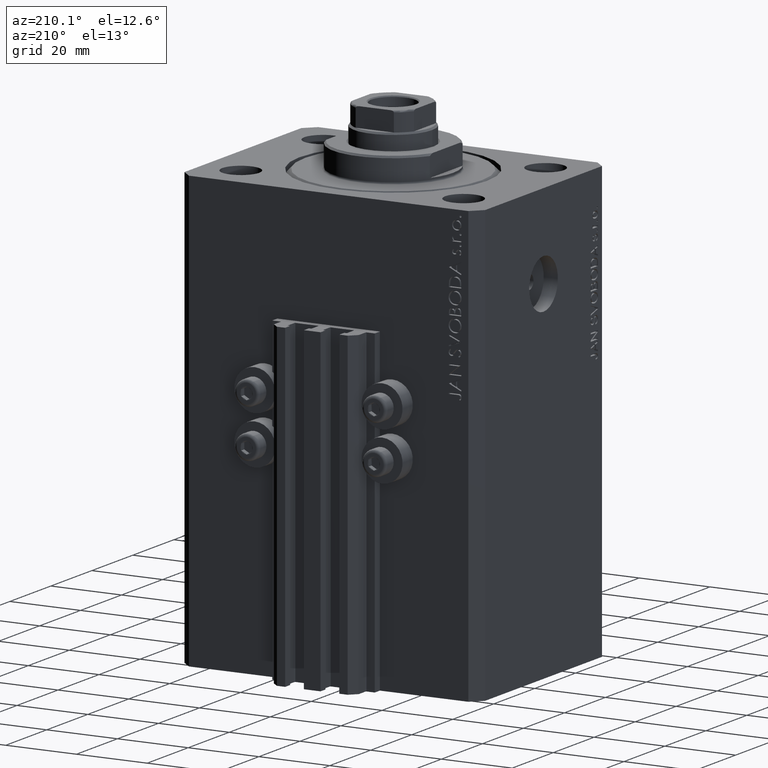
[diagram: clean part render]
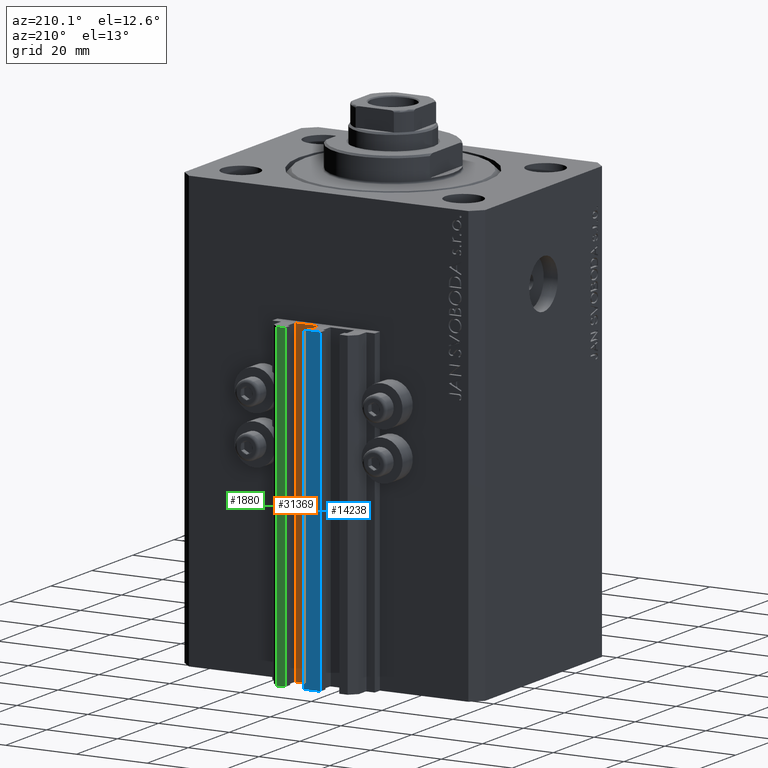
[diagram: same view with three faces highlighted in distinct colors, each labeled with its STEP entity id]
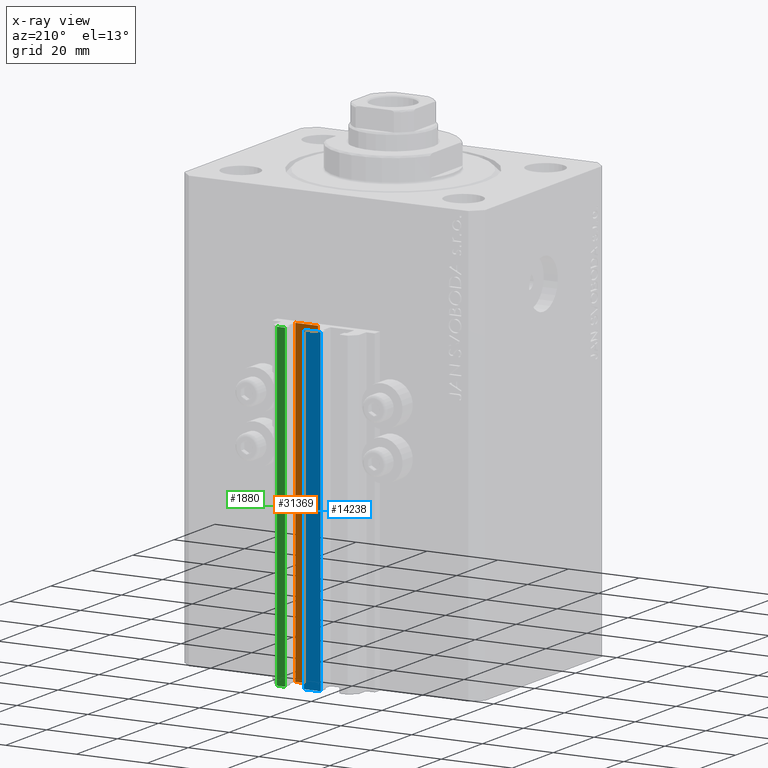
[diagram: x-ray of the same camera — body ghosted, the three highlighted faces saturated]
A machine part, auxiliary view with three faces highlighted in distinct colors.
The next image is the same camera in x-ray (body ghosted, the three faces saturated) — at least one of them is partly hidden behind the body in this view.
Their STEP definitions:

[orange] entity #31369 — the highlighted planar face has unit normal (0, 1, 0).
#597 = DIRECTION ( 'NONE',  ( 0.000000000000000000, 0.000000000000000000, 1.000000000000000000 ) ) ;
#833 = PLANE ( 'NONE',  #20936 ) ;
#950 = VECTOR ( 'NONE', #12486, 1000.000000000000000 ) ;
#1027 = CARTESIAN_POINT ( 'NONE',  ( 8.199999999999999289, 33.50000000000000000, -33.00000000000000000 ) ) ;
#1085 = EDGE_CURVE ( 'NONE', #8247, #42913, #40264, .T. ) ;
#2214 = LINE ( 'NONE', #41696, #950 ) ;
#2679 = CARTESIAN_POINT ( 'NONE',  ( 8.199999999999999289, 33.50000000000000000, -123.0000000000000000 ) ) ;
#3431 = VECTOR ( 'NONE', #5373, 1000.000000000000000 ) ;
#4209 = ORIENTED_EDGE ( 'NONE', *, *, #8981, .F. ) ;
#5373 = DIRECTION ( 'NONE',  ( 0.000000000000000000, 0.000000000000000000, 1.000000000000000000 ) ) ;
#8247 = VERTEX_POINT ( 'NONE', #2679 ) ;
#8672 = VERTEX_POINT ( 'NONE', #8765 ) ;
#8765 = CARTESIAN_POINT ( 'NONE',  ( 1.800000000000000933, 33.50000000000000000, -123.0000000000000000 ) ) ;
#8981 = EDGE_CURVE ( 'NONE', #42913, #45127, #16090, .T. ) ;
#11019 = ORIENTED_EDGE ( 'NONE', *, *, #1085, .F. ) ;
#11229 = VECTOR ( 'NONE', #12504, 1000.000000000000000 ) ;
#12058 = DIRECTION ( 'NONE',  ( 0.000000000000000000, 1.000000000000000000, -0.000000000000000000 ) ) ;
#12486 = DIRECTION ( 'NONE',  ( -1.000000000000000000, 0.000000000000000000, 0.000000000000000000 ) ) ;
#12504 = DIRECTION ( 'NONE',  ( -1.000000000000000000, 0.000000000000000000, 0.000000000000000000 ) ) ;
#13235 = CARTESIAN_POINT ( 'NONE',  ( 1.800000000000000933, 33.50000000000000000, -123.0000000000000000 ) ) ;
#13397 = ORIENTED_EDGE ( 'NONE', *, *, #33315, .T. ) ;
#16090 = LINE ( 'NONE', #38112, #11229 ) ;
#17993 = CARTESIAN_POINT ( 'NONE',  ( 8.199999999999999289, 33.50000000000000000, -123.0000000000000000 ) ) ;
#20879 = EDGE_LOOP ( 'NONE', ( #4209, #11019, #27934, #13397 ) ) ;
#20936 = AXIS2_PLACEMENT_3D ( 'NONE', #33365, #12058, #597 ) ;
#23046 = EDGE_CURVE ( 'NONE', #8247, #8672, #2214, .T. ) ;
#24940 = DIRECTION ( 'NONE',  ( 0.000000000000000000, 0.000000000000000000, 1.000000000000000000 ) ) ;
#25023 = CARTESIAN_POINT ( 'NONE',  ( 1.800000000000000933, 33.50000000000000000, -33.00000000000000000 ) ) ;
#27934 = ORIENTED_EDGE ( 'NONE', *, *, #23046, .T. ) ;
#31369 = ADVANCED_FACE ( 'NONE', ( #36477 ), #833, .T. ) ;
#33315 = EDGE_CURVE ( 'NONE', #8672, #45127, #46043, .T. ) ;
#33365 = CARTESIAN_POINT ( 'NONE',  ( 8.199999999999999289, 33.50000000000000000, -123.0000000000000000 ) ) ;
#36477 = FACE_OUTER_BOUND ( 'NONE', #20879, .T. ) ;
#38112 = CARTESIAN_POINT ( 'NONE',  ( 8.199999999999999289, 33.50000000000000000, -33.00000000000000000 ) ) ;
#40264 = LINE ( 'NONE', #17993, #45268 ) ;
#41696 = CARTESIAN_POINT ( 'NONE',  ( 8.199999999999999289, 33.50000000000000000, -123.0000000000000000 ) ) ;
#42913 = VERTEX_POINT ( 'NONE', #1027 ) ;
#45127 = VERTEX_POINT ( 'NONE', #25023 ) ;
#45268 = VECTOR ( 'NONE', #24940, 1000.000000000000000 ) ;
#46043 = LINE ( 'NONE', #13235, #3431 ) ;

[blue] entity #14238 — the highlighted planar face has unit normal (0, -1, 0).
#44 = ORIENTED_EDGE ( 'NONE', *, *, #7407, .F. ) ;
#622 = VECTOR ( 'NONE', #4316, 1000.000000000000000 ) ;
#789 = CARTESIAN_POINT ( 'NONE',  ( 2.349999999999999645, 39.50000000000000711, -123.0000000000000000 ) ) ;
#1429 = LINE ( 'NONE', #42087, #36469 ) ;
#1945 = EDGE_CURVE ( 'NONE', #34822, #44274, #14610, .T. ) ;
#2338 = CARTESIAN_POINT ( 'NONE',  ( -2.350000000000003642, 39.50000000000000711, -123.0000000000000000 ) ) ;
#3375 = CARTESIAN_POINT ( 'NONE',  ( 2.349999999999999645, 39.50000000000000711, -33.00000000000000000 ) ) ;
#4241 = EDGE_LOOP ( 'NONE', ( #39060, #32615, #44, #4969 ) ) ;
#4316 = DIRECTION ( 'NONE',  ( 0.000000000000000000, 0.000000000000000000, 1.000000000000000000 ) ) ;
#4969 = ORIENTED_EDGE ( 'NONE', *, *, #10688, .T. ) ;
#7407 = EDGE_CURVE ( 'NONE', #12511, #34822, #17380, .T. ) ;
#9864 = EDGE_CURVE ( 'NONE', #27172, #44274, #1429, .T. ) ;
#10688 = EDGE_CURVE ( 'NONE', #12511, #27172, #44286, .T. ) ;
#12511 = VERTEX_POINT ( 'NONE', #24920 ) ;
#13560 = DIRECTION ( 'NONE',  ( 1.000000000000000000, 0.000000000000000000, 0.000000000000000000 ) ) ;
#14238 = ADVANCED_FACE ( 'NONE', ( #24975 ), #35753, .F. ) ;
#14610 = LINE ( 'NONE', #28275, #29263 ) ;
#16212 = AXIS2_PLACEMENT_3D ( 'NONE', #43429, #36464, #18498 ) ;
#17380 = LINE ( 'NONE', #2338, #23376 ) ;
#18498 = DIRECTION ( 'NONE',  ( 0.000000000000000000, -0.000000000000000000, -1.000000000000000000 ) ) ;
#23376 = VECTOR ( 'NONE', #13560, 1000.000000000000000 ) ;
#24920 = CARTESIAN_POINT ( 'NONE',  ( -2.350000000000003642, 39.50000000000000711, -123.0000000000000000 ) ) ;
#24975 = FACE_OUTER_BOUND ( 'NONE', #4241, .T. ) ;
#27172 = VERTEX_POINT ( 'NONE', #33310 ) ;
#28275 = CARTESIAN_POINT ( 'NONE',  ( 2.349999999999999645, 39.50000000000000711, -123.0000000000000000 ) ) ;
#29263 = VECTOR ( 'NONE', #46489, 1000.000000000000000 ) ;
#32615 = ORIENTED_EDGE ( 'NONE', *, *, #1945, .F. ) ;
#33310 = CARTESIAN_POINT ( 'NONE',  ( -2.350000000000003642, 39.50000000000000711, -33.00000000000000000 ) ) ;
#34822 = VERTEX_POINT ( 'NONE', #789 ) ;
#35753 = PLANE ( 'NONE',  #16212 ) ;
#36464 = DIRECTION ( 'NONE',  ( 0.000000000000000000, -1.000000000000000000, 0.000000000000000000 ) ) ;
#36469 = VECTOR ( 'NONE', #38488, 1000.000000000000000 ) ;
#37074 = CARTESIAN_POINT ( 'NONE',  ( -2.350000000000003642, 39.50000000000000711, -123.0000000000000000 ) ) ;
#38488 = DIRECTION ( 'NONE',  ( 1.000000000000000000, 0.000000000000000000, 0.000000000000000000 ) ) ;
#39060 = ORIENTED_EDGE ( 'NONE', *, *, #9864, .T. ) ;
#42087 = CARTESIAN_POINT ( 'NONE',  ( -2.350000000000003642, 39.50000000000000711, -33.00000000000000000 ) ) ;
#43429 = CARTESIAN_POINT ( 'NONE',  ( -2.350000000000003642, 39.50000000000000711, -123.0000000000000000 ) ) ;
#44274 = VERTEX_POINT ( 'NONE', #3375 ) ;
#44286 = LINE ( 'NONE', #37074, #622 ) ;
#46489 = DIRECTION ( 'NONE',  ( 0.000000000000000000, 0.000000000000000000, 1.000000000000000000 ) ) ;

[green] entity #1880 — the highlighted planar face has unit normal (0, 1, 0).
#1880 = ADVANCED_FACE ( 'NONE', ( #37868 ), #13441, .T. ) ;
#3472 = CARTESIAN_POINT ( 'NONE',  ( 9.999999999999998224, 39.50000000000002132, -123.0000000000000000 ) ) ;
#5445 = DIRECTION ( 'NONE',  ( -1.000000000000000000, 0.000000000000000000, 0.000000000000000000 ) ) ;
#5606 = AXIS2_PLACEMENT_3D ( 'NONE', #12498, #41712, #34283 ) ;
#6190 = ORIENTED_EDGE ( 'NONE', *, *, #40407, .F. ) ;
#7792 = VERTEX_POINT ( 'NONE', #21594 ) ;
#7884 = CARTESIAN_POINT ( 'NONE',  ( 7.649999999999998579, 39.50000000000002132, -123.0000000000000000 ) ) ;
#9560 = VERTEX_POINT ( 'NONE', #44805 ) ;
#10308 = VECTOR ( 'NONE', #10690, 1000.000000000000000 ) ;
#10690 = DIRECTION ( 'NONE',  ( 0.000000000000000000, 0.000000000000000000, 1.000000000000000000 ) ) ;
#11369 = ORIENTED_EDGE ( 'NONE', *, *, #35462, .T. ) ;
#12498 = CARTESIAN_POINT ( 'NONE',  ( 9.999999999999998224, 39.50000000000002132, -123.0000000000000000 ) ) ;
#12650 = ORIENTED_EDGE ( 'NONE', *, *, #20498, .T. ) ;
#13441 = PLANE ( 'NONE',  #5606 ) ;
#15993 = ORIENTED_EDGE ( 'NONE', *, *, #38391, .F. ) ;
#17575 = DIRECTION ( 'NONE',  ( 0.000000000000000000, 0.000000000000000000, 1.000000000000000000 ) ) ;
#18567 = CARTESIAN_POINT ( 'NONE',  ( 7.649999999999998579, 39.50000000000002132, -123.0000000000000000 ) ) ;
#20498 = EDGE_CURVE ( 'NONE', #28184, #7792, #25044, .T. ) ;
#20927 = LINE ( 'NONE', #3472, #39470 ) ;
#21594 = CARTESIAN_POINT ( 'NONE',  ( 7.649999999999998579, 39.50000000000002132, -33.00000000000000000 ) ) ;
#22295 = CARTESIAN_POINT ( 'NONE',  ( 9.999999999999998224, 39.50000000000002132, -123.0000000000000000 ) ) ;
#25044 = LINE ( 'NONE', #18567, #10308 ) ;
#25655 = VECTOR ( 'NONE', #32614, 1000.000000000000000 ) ;
#26933 = VERTEX_POINT ( 'NONE', #46031 ) ;
#28184 = VERTEX_POINT ( 'NONE', #7884 ) ;
#32614 = DIRECTION ( 'NONE',  ( -1.000000000000000000, 0.000000000000000000, 0.000000000000000000 ) ) ;
#34283 = DIRECTION ( 'NONE',  ( 0.000000000000000000, 0.000000000000000000, 1.000000000000000000 ) ) ;
#35462 = EDGE_CURVE ( 'NONE', #9560, #28184, #40035, .T. ) ;
#37868 = FACE_OUTER_BOUND ( 'NONE', #42810, .T. ) ;
#38220 = CARTESIAN_POINT ( 'NONE',  ( 9.999999999999998224, 39.50000000000002132, -33.00000000000000000 ) ) ;
#38391 = EDGE_CURVE ( 'NONE', #26933, #7792, #45655, .T. ) ;
#39470 = VECTOR ( 'NONE', #17575, 1000.000000000000000 ) ;
#40035 = LINE ( 'NONE', #22295, #25655 ) ;
#40407 = EDGE_CURVE ( 'NONE', #9560, #26933, #20927, .T. ) ;
#41712 = DIRECTION ( 'NONE',  ( 0.000000000000000000, 1.000000000000000000, -0.000000000000000000 ) ) ;
#42810 = EDGE_LOOP ( 'NONE', ( #15993, #6190, #11369, #12650 ) ) ;
#44805 = CARTESIAN_POINT ( 'NONE',  ( 9.999999999999998224, 39.50000000000002132, -123.0000000000000000 ) ) ;
#45655 = LINE ( 'NONE', #38220, #47170 ) ;
#46031 = CARTESIAN_POINT ( 'NONE',  ( 9.999999999999998224, 39.50000000000002132, -33.00000000000000000 ) ) ;
#47170 = VECTOR ( 'NONE', #5445, 1000.000000000000000 ) ;